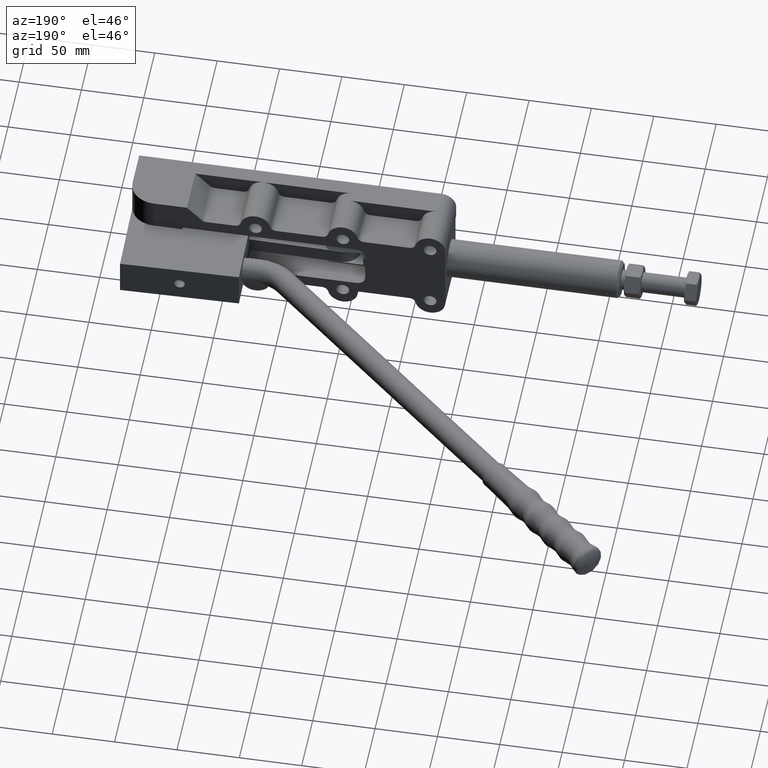
[diagram: clean part render]
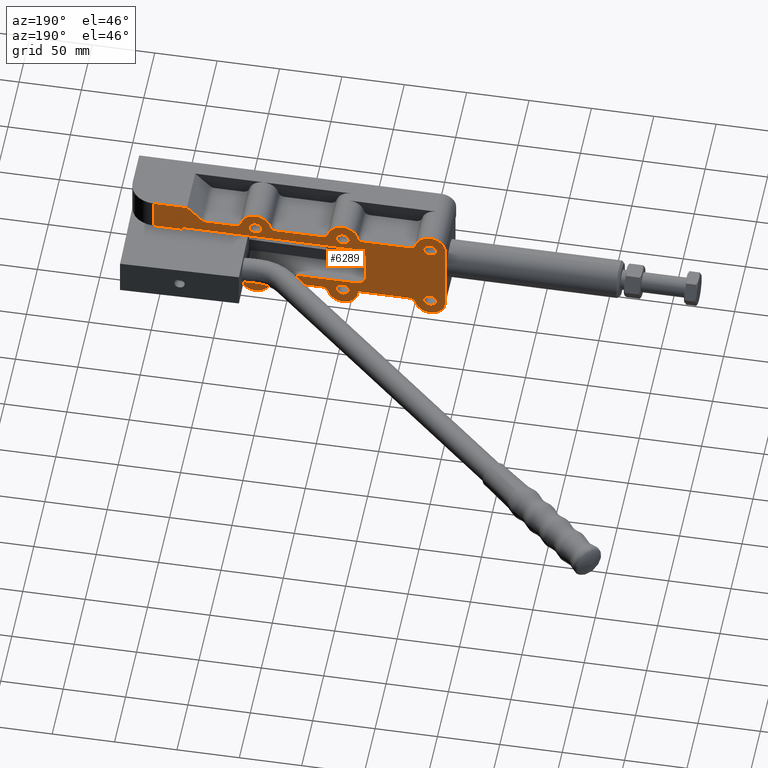
[diagram: same view with one face highlighted and labeled with its STEP entity id]
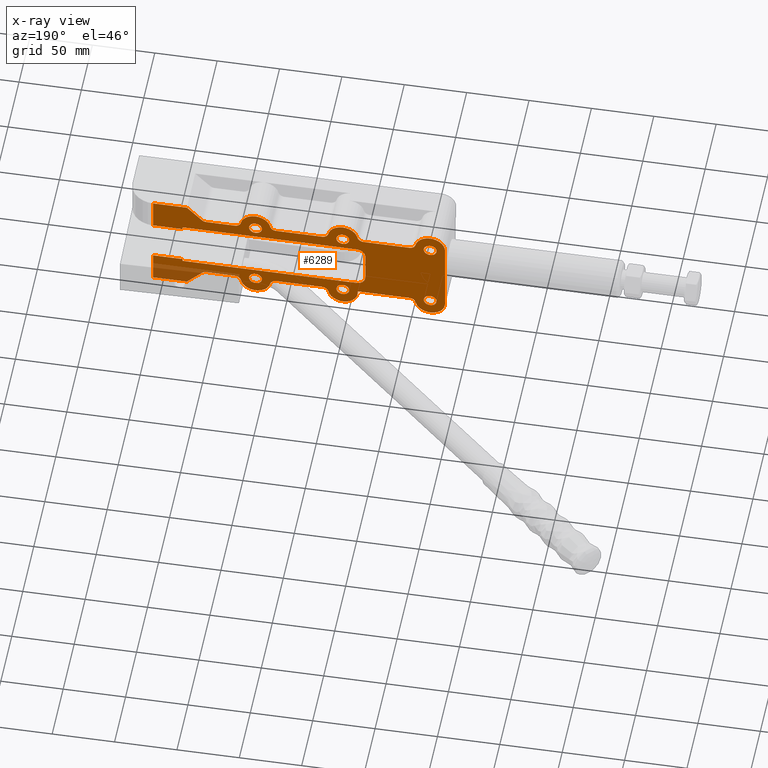
[diagram: x-ray of the same camera — body ghosted, the highlighted face saturated]
A machine part, auxiliary view. The second image highlights one B-rep face of the part: STEP entity #6289.
The next image is the same camera in x-ray: the body ghosted, the highlighted face saturated — about 7% of this face is hidden behind the body in this view.
In plain terms, the highlighted planar face has unit normal (0, 1, 0).
Its self-contained STEP definition (entity closure, byte-faithful):
#5 = ORIENTED_EDGE ( 'NONE', *, *, #2763, .T. ) ;
#11 = VECTOR ( 'NONE', #4022, 1000.000000000000000 ) ;
#14 = CARTESIAN_POINT ( 'NONE',  ( -127.0000000000000000, 51.00000000000000000, 42.00000000000002800 ) ) ;
#18 = VECTOR ( 'NONE', #5326, 1000.000000000000000 ) ;
#20 = CIRCLE ( 'NONE', #5557, 12.00000000000001400 ) ;
#22 = CIRCLE ( 'NONE', #1687, 5.000000000000000900 ) ;
#30 = DIRECTION ( 'NONE',  ( -1.000000000000000000, -0.0000000000000000000, -0.0000000000000000000 ) ) ;
#47 = DIRECTION ( 'NONE',  ( 0.0000000000000000000, -1.000000000000000000, -0.0000000000000000000 ) ) ;
#65 = CARTESIAN_POINT ( 'NONE',  ( 64.42893218813451000, 51.00000000000000000, 28.49999999999995700 ) ) ;
#97 = VERTEX_POINT ( 'NONE', #6593 ) ;
#111 = CIRCLE ( 'NONE', #5689, 12.00000000000000400 ) ;
#184 = CIRCLE ( 'NONE', #3871, 12.00000000000000000 ) ;
#277 = FACE_BOUND ( 'NONE', #3356, .T. ) ;
#306 = EDGE_CURVE ( 'NONE', #2485, #1443, #2377, .T. ) ;
#323 = CARTESIAN_POINT ( 'NONE',  ( -114.9999999999999900, 51.00000000000000000, 29.99999999999999600 ) ) ;
#331 = CIRCLE ( 'NONE', #6644, 12.00000000000000400 ) ;
#333 = CARTESIAN_POINT ( 'NONE',  ( -115.0000000000000000, 51.00000000000000000, -30.00000000000000400 ) ) ;
#373 = DIRECTION ( 'NONE',  ( -0.0000000000000000000, -1.000000000000000000, -0.0000000000000000000 ) ) ;
#380 = DIRECTION ( 'NONE',  ( 0.0000000000000000000, -1.000000000000000000, 0.0000000000000000000 ) ) ;
#396 = CARTESIAN_POINT ( 'NONE',  ( -114.9999999999999700, 51.00000000000000000, -28.50000000000000000 ) ) ;
#407 = VERTEX_POINT ( 'NONE', #5349 ) ;
#417 = ORIENTED_EDGE ( 'NONE', *, *, #2195, .T. ) ;
#428 = ORIENTED_EDGE ( 'NONE', *, *, #1977, .T. ) ;
#432 = EDGE_CURVE ( 'NONE', #5784, #4433, #5750, .T. ) ;
#436 = CARTESIAN_POINT ( 'NONE',  ( -56.00000000000000000, 51.00000000000000000, -12.00000000000001100 ) ) ;
#437 = VECTOR ( 'NONE', #4554, 999.9999999999998900 ) ;
#443 = CIRCLE ( 'NONE', #1107, 5.150000000000002100 ) ;
#444 = CARTESIAN_POINT ( 'NONE',  ( -56.90588089979066000, 51.00000000000000000, -28.50000000000000700 ) ) ;
#477 = AXIS2_PLACEMENT_3D ( 'NONE', #2222, #5921, #2748 ) ;
#502 = VERTEX_POINT ( 'NONE', #691 ) ;
#508 = DIRECTION ( 'NONE',  ( 0.0000000000000000000, -1.000000000000000000, 0.0000000000000000000 ) ) ;
#512 = LINE ( 'NONE', #1336, #3131 ) ;
#522 = CIRCLE ( 'NONE', #3240, 6.999999999999999100 ) ;
#548 = AXIS2_PLACEMENT_3D ( 'NONE', #5476, #3727, #3171 ) ;
#587 = ORIENTED_EDGE ( 'NONE', *, *, #2639, .T. ) ;
#597 = DIRECTION ( 'NONE',  ( 0.0000000000000000000, -1.000000000000000000, -0.0000000000000000000 ) ) ;
#599 = CIRCLE ( 'NONE', #5586, 4.999999999999997300 ) ;
#624 = DIRECTION ( 'NONE',  ( 0.0000000000000000000, -1.000000000000000000, -0.0000000000000000000 ) ) ;
#629 = CARTESIAN_POINT ( 'NONE',  ( 36.74292100678645300, 50.99999999999999300, 32.47058823529408000 ) ) ;
#638 = ORIENTED_EDGE ( 'NONE', *, *, #2761, .F. ) ;
#650 = VERTEX_POINT ( 'NONE', #4992 ) ;
#659 = ORIENTED_EDGE ( 'NONE', *, *, #1508, .T. ) ;
#668 = ORIENTED_EDGE ( 'NONE', *, *, #4842, .F. ) ;
#691 = CARTESIAN_POINT ( 'NONE',  ( -115.0000000000000000, 51.00000000000000000, 23.34999999999999400 ) ) ;
#693 = VERTEX_POINT ( 'NONE', #1349 ) ;
#696 = AXIS2_PLACEMENT_3D ( 'NONE', #1860, #5546, #2397 ) ;
#700 = DIRECTION ( 'NONE',  ( -1.000000000000000000, 0.0000000000000000000, 3.517030130417777600E-016 ) ) ;
#707 = CARTESIAN_POINT ( 'NONE',  ( 8.364195240385882400, 50.99999999999999300, 33.49999999999996400 ) ) ;
#709 = EDGE_CURVE ( 'NONE', #5808, #407, #5834, .T. ) ;
#729 = ORIENTED_EDGE ( 'NONE', *, *, #6568, .T. ) ;
#739 = AXIS2_PLACEMENT_3D ( 'NONE', #6037, #2872, #6564 ) ;
#778 = CARTESIAN_POINT ( 'NONE',  ( 106.9999999999999900, 51.00000000000000000, 42.00000000000000000 ) ) ;
#793 = CARTESIAN_POINT ( 'NONE',  ( 25.00000000000000700, 51.00000000000000000, 33.64999999999999900 ) ) ;
#794 = ORIENTED_EDGE ( 'NONE', *, *, #432, .T. ) ;
#814 = AXIS2_PLACEMENT_3D ( 'NONE', #4465, #508, #1991 ) ;
#820 = ORIENTED_EDGE ( 'NONE', *, *, #6361, .F. ) ;
#838 = ORIENTED_EDGE ( 'NONE', *, *, #1763, .T. ) ;
#855 = DIRECTION ( 'NONE',  ( 0.0000000000000000000, 0.0000000000000000000, 1.000000000000000000 ) ) ;
#871 = AXIS2_PLACEMENT_3D ( 'NONE', #396, #4060, #919 ) ;
#890 = CARTESIAN_POINT ( 'NONE',  ( -127.0000000000000000, 51.00000000000000000, -41.99999999999999300 ) ) ;
#893 = DIRECTION ( 'NONE',  ( 0.0000000000000000000, -1.000000000000000000, 0.0000000000000000000 ) ) ;
#907 = EDGE_CURVE ( 'NONE', #2379, #693, #5095, .T. ) ;
#910 = VERTEX_POINT ( 'NONE', #2617 ) ;
#919 = DIRECTION ( 'NONE',  ( 0.0000000000000000000, 0.0000000000000000000, 1.000000000000000000 ) ) ;
#931 = LINE ( 'NONE', #4941, #3731 ) ;
#943 = VECTOR ( 'NONE', #6491, 1000.000000000000000 ) ;
#955 = DIRECTION ( 'NONE',  ( 0.0000000000000000000, 0.0000000000000000000, 1.000000000000000000 ) ) ;
#956 = CARTESIAN_POINT ( 'NONE',  ( 8.364195240385882400, 51.00000000000000000, -28.50000000000000400 ) ) ;
#957 = VECTOR ( 'NONE', #3124, 1000.000000000000000 ) ;
#959 = EDGE_CURVE ( 'NONE', #5864, #2053, #3006, .T. ) ;
#968 = CARTESIAN_POINT ( 'NONE',  ( 8.364195240385882400, 50.99999999999999300, -33.50000000000000000 ) ) ;
#978 = CARTESIAN_POINT ( 'NONE',  ( 25.00000000000000700, 50.99999999999999300, 29.99999999999996100 ) ) ;
#980 = VERTEX_POINT ( 'NONE', #65 ) ;
#994 = CIRCLE ( 'NONE', #2621, 5.150000000000002100 ) ;
#1003 = EDGE_LOOP ( 'NONE', ( #2481, #5 ) ) ;
#1008 = LINE ( 'NONE', #4260, #3653 ) ;
#1014 = CIRCLE ( 'NONE', #4601, 5.149999999999998600 ) ;
#1019 = CARTESIAN_POINT ( 'NONE',  ( -114.9999999999999700, 51.00000000000000000, -23.35000000000000100 ) ) ;
#1107 = AXIS2_PLACEMENT_3D ( 'NONE', #2937, #6050, #2774 ) ;
#1120 = EDGE_LOOP ( 'NONE', ( #838, #5273 ) ) ;
#1129 = DIRECTION ( 'NONE',  ( -0.0000000000000000000, -1.000000000000000000, -0.0000000000000000000 ) ) ;
#1164 = CARTESIAN_POINT ( 'NONE',  ( -98.36419524038588200, 51.00000000000000000, -28.50000000000000400 ) ) ;
#1168 = ORIENTED_EDGE ( 'NONE', *, *, #1800, .F. ) ;
#1227 = DIRECTION ( 'NONE',  ( -1.040834085586084800E-015, 0.0000000000000000000, 1.000000000000000000 ) ) ;
#1323 = VECTOR ( 'NONE', #5101, 1000.000000000000000 ) ;
#1331 = FACE_OUTER_BOUND ( 'NONE', #3786, .T. ) ;
#1336 = CARTESIAN_POINT ( 'NONE',  ( -56.90588089979066000, 51.00000000000000000, -28.50000000000000700 ) ) ;
#1341 = ORIENTED_EDGE ( 'NONE', *, *, #2491, .T. ) ;
#1349 = CARTESIAN_POINT ( 'NONE',  ( 106.9999999999999900, 51.00000000000000000, 17.00000000000000000 ) ) ;
#1357 = CARTESIAN_POINT ( 'NONE',  ( 83.49999999999998600, 51.00000000000000000, -19.00000000000003200 ) ) ;
#1360 = CARTESIAN_POINT ( 'NONE',  ( 83.49999999999998600, 51.00000000000000000, 17.00000000000000000 ) ) ;
#1362 = AXIS2_PLACEMENT_3D ( 'NONE', #2739, #6425, #3261 ) ;
#1370 = VERTEX_POINT ( 'NONE', #4137 ) ;
#1371 = EDGE_CURVE ( 'NONE', #980, #2479, #3824, .T. ) ;
#1383 = CARTESIAN_POINT ( 'NONE',  ( 66.49999999999997200, 51.00000000000000000, -28.50000000000000400 ) ) ;
#1390 = CARTESIAN_POINT ( 'NONE',  ( -56.90588089979065200, 51.00000000000000000, 28.49999999999998200 ) ) ;
#1395 = LINE ( 'NONE', #6141, #11 ) ;
#1405 = DIRECTION ( 'NONE',  ( 0.0000000000000000000, -0.0000000000000000000, 1.000000000000000000 ) ) ;
#1443 = VERTEX_POINT ( 'NONE', #2142 ) ;
#1490 = FACE_BOUND ( 'NONE', #2251, .T. ) ;
#1501 = DIRECTION ( 'NONE',  ( 0.0000000000000000000, 0.0000000000000000000, 1.000000000000000000 ) ) ;
#1508 = EDGE_CURVE ( 'NONE', #1443, #5543, #3744, .T. ) ;
#1509 = ORIENTED_EDGE ( 'NONE', *, *, #907, .F. ) ;
#1523 = CARTESIAN_POINT ( 'NONE',  ( -45.00000000000002100, 51.00000000000000000, -23.35000000000001900 ) ) ;
#1538 = CARTESIAN_POINT ( 'NONE',  ( 77.43408512738362500, 51.00000000000000000, 17.00000000000000000 ) ) ;
#1540 = ORIENTED_EDGE ( 'NONE', *, *, #3020, .T. ) ;
#1570 = LINE ( 'NONE', #6246, #4221 ) ;
#1637 = ORIENTED_EDGE ( 'NONE', *, *, #4802, .F. ) ;
#1674 = ORIENTED_EDGE ( 'NONE', *, *, #4606, .F. ) ;
#1687 = AXIS2_PLACEMENT_3D ( 'NONE', #3773, #1968, #5260 ) ;
#1732 = VERTEX_POINT ( 'NONE', #4589 ) ;
#1744 = EDGE_LOOP ( 'NONE', ( #1341, #2875 ) ) ;
#1763 = EDGE_CURVE ( 'NONE', #3102, #2629, #1858, .T. ) ;
#1774 = DIRECTION ( 'NONE',  ( -0.0000000000000000000, -0.0000000000000000000, -1.000000000000000000 ) ) ;
#1792 = VERTEX_POINT ( 'NONE', #2619 ) ;
#1800 = EDGE_CURVE ( 'NONE', #2552, #3760, #5238, .T. ) ;
#1827 = AXIS2_PLACEMENT_3D ( 'NONE', #5984, #1833, #2537 ) ;
#1828 = DIRECTION ( 'NONE',  ( 0.0000000000000000000, -1.000000000000000000, 0.0000000000000000000 ) ) ;
#1832 = LINE ( 'NONE', #5470, #437 ) ;
#1833 = DIRECTION ( 'NONE',  ( 0.0000000000000000000, -1.000000000000000000, 0.0000000000000000000 ) ) ;
#1852 = ORIENTED_EDGE ( 'NONE', *, *, #6266, .F. ) ;
#1858 = CIRCLE ( 'NONE', #814, 5.150000000000002100 ) ;
#1860 = CARTESIAN_POINT ( 'NONE',  ( -28.36419524038586100, 50.99999999999999300, 33.49999999999997200 ) ) ;
#1875 = AXIS2_PLACEMENT_3D ( 'NONE', #333, #3519, #6683 ) ;
#1893 = VERTEX_POINT ( 'NONE', #6202 ) ;
#1894 = VERTEX_POINT ( 'NONE', #5140 ) ;
#1900 = ORIENTED_EDGE ( 'NONE', *, *, #6726, .T. ) ;
#1908 = DIRECTION ( 'NONE',  ( -0.0000000000000000000, -0.0000000000000000000, -1.000000000000000000 ) ) ;
#1940 = PLANE ( 'NONE',  #6731 ) ;
#1946 = DIRECTION ( 'NONE',  ( 0.0000000000000000000, -1.000000000000000000, -0.0000000000000000000 ) ) ;
#1959 = CARTESIAN_POINT ( 'NONE',  ( 13.09411910020935100, 51.00000000000000000, -28.50000000000000400 ) ) ;
#1965 = CARTESIAN_POINT ( 'NONE',  ( -115.0000000000000000, 51.00000000000000000, 28.49999999999999300 ) ) ;
#1968 = DIRECTION ( 'NONE',  ( 0.0000000000000000000, -1.000000000000000000, -0.0000000000000000000 ) ) ;
#1977 = EDGE_CURVE ( 'NONE', #2408, #2752, #6546, .T. ) ;
#1978 = VERTEX_POINT ( 'NONE', #2599 ) ;
#1989 = VERTEX_POINT ( 'NONE', #3078 ) ;
#1991 = DIRECTION ( 'NONE',  ( 0.0000000000000000000, 0.0000000000000000000, 1.000000000000000000 ) ) ;
#2007 = CIRCLE ( 'NONE', #6286, 5.149999999999998600 ) ;
#2015 = CARTESIAN_POINT ( 'NONE',  ( -55.99999999999999300, 51.00000000000000000, 18.99999999999998600 ) ) ;
#2031 = DIRECTION ( 'NONE',  ( 0.0000000000000000000, -1.000000000000000000, 0.0000000000000000000 ) ) ;
#2053 = VERTEX_POINT ( 'NONE', #3307 ) ;
#2125 = CARTESIAN_POINT ( 'NONE',  ( 77.43408512738362500, 51.00000000000000000, -17.00000000000000000 ) ) ;
#2137 = VERTEX_POINT ( 'NONE', #1164 ) ;
#2142 = CARTESIAN_POINT ( 'NONE',  ( 106.9999999999999900, 51.00000000000000000, -42.00000000000000000 ) ) ;
#2146 = VECTOR ( 'NONE', #3546, 1000.000000000000100 ) ;
#2147 = ORIENTED_EDGE ( 'NONE', *, *, #3658, .T. ) ;
#2149 = DIRECTION ( 'NONE',  ( 0.0000000000000000000, -1.000000000000000000, 0.0000000000000000000 ) ) ;
#2160 = LINE ( 'NONE', #1383, #1323 ) ;
#2165 = CARTESIAN_POINT ( 'NONE',  ( -56.00000000000000000, 51.00000000000000000, -19.00000000000000700 ) ) ;
#2168 = DIRECTION ( 'NONE',  ( 0.0000000000000000000, -1.000000000000000000, -0.0000000000000000000 ) ) ;
#2195 = EDGE_CURVE ( 'NONE', #2752, #693, #1008, .T. ) ;
#2200 = DIRECTION ( 'NONE',  ( -1.000000000000000000, 0.0000000000000000000, 7.511537757511100400E-017 ) ) ;
#2222 = CARTESIAN_POINT ( 'NONE',  ( -98.36419524038588200, 50.99999999999999300, -33.50000000000000000 ) ) ;
#2251 = EDGE_LOOP ( 'NONE', ( #3021, #4719 ) ) ;
#2258 = ORIENTED_EDGE ( 'NONE', *, *, #4039, .F. ) ;
#2272 = CARTESIAN_POINT ( 'NONE',  ( -103.2570789932135700, 51.00000000000000000, -32.47058823529411600 ) ) ;
#2293 = EDGE_CURVE ( 'NONE', #4521, #1792, #4553, .T. ) ;
#2299 = VERTEX_POINT ( 'NONE', #444 ) ;
#2320 = VERTEX_POINT ( 'NONE', #3399 ) ;
#2371 = DIRECTION ( 'NONE',  ( 0.0000000000000000000, -1.000000000000000000, -0.0000000000000000000 ) ) ;
#2377 = LINE ( 'NONE', #4160, #957 ) ;
#2379 = VERTEX_POINT ( 'NONE', #1360 ) ;
#2384 = VERTEX_POINT ( 'NONE', #4159 ) ;
#2397 = DIRECTION ( 'NONE',  ( 0.0000000000000000000, 0.0000000000000000000, 1.000000000000000000 ) ) ;
#2408 = VERTEX_POINT ( 'NONE', #4440 ) ;
#2415 = CIRCLE ( 'NONE', #696, 4.999999999999997300 ) ;
#2445 = VECTOR ( 'NONE', #4716, 1000.000000000000000 ) ;
#2462 = EDGE_CURVE ( 'NONE', #5864, #6428, #4636, .T. ) ;
#2466 = CARTESIAN_POINT ( 'NONE',  ( -114.9999999999999900, 51.00000000000000000, 42.00000000000000700 ) ) ;
#2479 = VERTEX_POINT ( 'NONE', #3428 ) ;
#2481 = ORIENTED_EDGE ( 'NONE', *, *, #3035, .T. ) ;
#2485 = VERTEX_POINT ( 'NONE', #4833 ) ;
#2487 = DIRECTION ( 'NONE',  ( 1.000000000000000000, -0.0000000000000000000, -0.0000000000000000000 ) ) ;
#2491 = EDGE_CURVE ( 'NONE', #1792, #4521, #443, .T. ) ;
#2537 = DIRECTION ( 'NONE',  ( 0.0000000000000000000, 0.0000000000000000000, -1.000000000000000000 ) ) ;
#2548 = DIRECTION ( 'NONE',  ( 0.0000000000000000000, 0.0000000000000000000, -1.000000000000000000 ) ) ;
#2552 = VERTEX_POINT ( 'NONE', #3862 ) ;
#2554 = EDGE_CURVE ( 'NONE', #1978, #5693, #2738, .T. ) ;
#2563 = DIRECTION ( 'NONE',  ( 0.0000000000000000000, 0.0000000000000000000, 1.000000000000000000 ) ) ;
#2571 = DIRECTION ( 'NONE',  ( 0.0000000000000000000, -1.000000000000000000, -0.0000000000000000000 ) ) ;
#2573 = VECTOR ( 'NONE', #2487, 1000.000000000000000 ) ;
#2599 = CARTESIAN_POINT ( 'NONE',  ( 25.00000000000000700, 51.00000000000000000, 23.34999999999999100 ) ) ;
#2617 = CARTESIAN_POINT ( 'NONE',  ( 67.96446609406724800, 51.00000000000000000, -29.96446609406726200 ) ) ;
#2619 = CARTESIAN_POINT ( 'NONE',  ( -45.00000000000002100, 51.00000000000000000, -33.65000000000002700 ) ) ;
#2621 = AXIS2_PLACEMENT_3D ( 'NONE', #2951, #380, #3264 ) ;
#2629 = VERTEX_POINT ( 'NONE', #5391 ) ;
#2635 = ORIENTED_EDGE ( 'NONE', *, *, #2717, .T. ) ;
#2639 = EDGE_CURVE ( 'NONE', #3358, #2053, #22, .T. ) ;
#2648 = CIRCLE ( 'NONE', #477, 5.000000000000000900 ) ;
#2685 = CARTESIAN_POINT ( 'NONE',  ( -115.0000000000000000, 51.00000000000000000, 28.49999999999999300 ) ) ;
#2717 = EDGE_CURVE ( 'NONE', #2320, #2803, #599, .T. ) ;
#2731 = LINE ( 'NONE', #1959, #2573 ) ;
#2737 = FACE_BOUND ( 'NONE', #1003, .T. ) ;
#2738 = CIRCLE ( 'NONE', #1827, 5.150000000000002100 ) ;
#2739 = CARTESIAN_POINT ( 'NONE',  ( -45.00000000000000000, 51.00000000000000000, 28.49999999999999300 ) ) ;
#2748 = DIRECTION ( 'NONE',  ( 0.0000000000000000000, 0.0000000000000000000, 1.000000000000000000 ) ) ;
#2749 = CIRCLE ( 'NONE', #4929, 5.150000000000002100 ) ;
#2752 = VERTEX_POINT ( 'NONE', #778 ) ;
#2761 = EDGE_CURVE ( 'NONE', #910, #5543, #1832, .T. ) ;
#2763 = EDGE_CURVE ( 'NONE', #3265, #502, #2007, .T. ) ;
#2774 = DIRECTION ( 'NONE',  ( 0.0000000000000000000, 0.0000000000000000000, 1.000000000000000000 ) ) ;
#2803 = VERTEX_POINT ( 'NONE', #6483 ) ;
#2824 = EDGE_CURVE ( 'NONE', #2629, #3102, #994, .T. ) ;
#2872 = DIRECTION ( 'NONE',  ( 0.0000000000000000000, -1.000000000000000000, -0.0000000000000000000 ) ) ;
#2875 = ORIENTED_EDGE ( 'NONE', *, *, #2293, .T. ) ;
#2908 = FACE_BOUND ( 'NONE', #1120, .T. ) ;
#2920 = VERTEX_POINT ( 'NONE', #3594 ) ;
#2937 = CARTESIAN_POINT ( 'NONE',  ( -45.00000000000002100, 51.00000000000000000, -28.50000000000002100 ) ) ;
#2951 = CARTESIAN_POINT ( 'NONE',  ( 24.99999999999995400, 51.00000000000000000, -28.50000000000003600 ) ) ;
#2980 = CARTESIAN_POINT ( 'NONE',  ( 25.00000000000000700, 50.99999999999999300, 29.99999999999996100 ) ) ;
#2998 = VERTEX_POINT ( 'NONE', #4741 ) ;
#3005 = CARTESIAN_POINT ( 'NONE',  ( -44.99999999999999300, 51.00000000000000000, 29.99999999999997200 ) ) ;
#3006 = CIRCLE ( 'NONE', #4640, 12.00000000000000000 ) ;
#3010 = CARTESIAN_POINT ( 'NONE',  ( -56.00000000000000000, 51.00000000000000000, 11.99999999999998900 ) ) ;
#3020 = EDGE_CURVE ( 'NONE', #2920, #5861, #3815, .T. ) ;
#3021 = ORIENTED_EDGE ( 'NONE', *, *, #3507, .T. ) ;
#3035 = EDGE_CURVE ( 'NONE', #502, #3265, #1014, .T. ) ;
#3075 = EDGE_CURVE ( 'NONE', #980, #2384, #6297, .T. ) ;
#3078 = CARTESIAN_POINT ( 'NONE',  ( 64.42893218813449600, 51.00000000000000000, -28.50000000000000400 ) ) ;
#3102 = VERTEX_POINT ( 'NONE', #3789 ) ;
#3124 = DIRECTION ( 'NONE',  ( 0.0000000000000000000, 0.0000000000000000000, -1.000000000000000000 ) ) ;
#3131 = VECTOR ( 'NONE', #3945, 1000.000000000000000 ) ;
#3167 = EDGE_CURVE ( 'NONE', #1370, #1732, #3666, .T. ) ;
#3171 = DIRECTION ( 'NONE',  ( 0.0000000000000000000, 0.0000000000000000000, 1.000000000000000000 ) ) ;
#3179 = CARTESIAN_POINT ( 'NONE',  ( -28.36419524038586100, 50.99999999999999300, -33.50000000000000000 ) ) ;
#3191 = DIRECTION ( 'NONE',  ( 0.0000000000000000000, 0.0000000000000000000, 1.000000000000000000 ) ) ;
#3212 = DIRECTION ( 'NONE',  ( 0.0000000000000000000, 0.0000000000000000000, -1.000000000000000000 ) ) ;
#3224 = VECTOR ( 'NONE', #30, 1000.000000000000000 ) ;
#3240 = AXIS2_PLACEMENT_3D ( 'NONE', #3010, #6704, #3540 ) ;
#3242 = CIRCLE ( 'NONE', #6469, 4.999999999999997300 ) ;
#3257 = CARTESIAN_POINT ( 'NONE',  ( -127.0000000000000000, 51.00000000000000000, -41.99999999999999300 ) ) ;
#3261 = DIRECTION ( 'NONE',  ( 0.0000000000000000000, 0.0000000000000000000, -1.000000000000000000 ) ) ;
#3264 = DIRECTION ( 'NONE',  ( 0.0000000000000000000, 0.0000000000000000000, 1.000000000000000000 ) ) ;
#3265 = VERTEX_POINT ( 'NONE', #3911 ) ;
#3307 = CARTESIAN_POINT ( 'NONE',  ( 36.74292100678645300, 50.99999999999999300, -32.47058823529411600 ) ) ;
#3334 = VECTOR ( 'NONE', #700, 1000.000000000000000 ) ;
#3356 = EDGE_LOOP ( 'NONE', ( #6089, #4726 ) ) ;
#3358 = VERTEX_POINT ( 'NONE', #5577 ) ;
#3370 = ORIENTED_EDGE ( 'NONE', *, *, #6160, .T. ) ;
#3399 = CARTESIAN_POINT ( 'NONE',  ( -103.2570789932135300, 51.00000000000000000, 32.47058823529410900 ) ) ;
#3416 = CIRCLE ( 'NONE', #5407, 5.149999999999998600 ) ;
#3428 = CARTESIAN_POINT ( 'NONE',  ( 41.63580475961413200, 51.00000000000000000, 28.49999999999996800 ) ) ;
#3496 = DIRECTION ( 'NONE',  ( 8.673617379884035500E-016, 0.0000000000000000000, 1.000000000000000000 ) ) ;
#3504 = CARTESIAN_POINT ( 'NONE',  ( -44.99999999999999300, 51.00000000000000000, -29.99999999999999300 ) ) ;
#3507 = EDGE_CURVE ( 'NONE', #5226, #5042, #3416, .T. ) ;
#3519 = DIRECTION ( 'NONE',  ( -0.0000000000000000000, -1.000000000000000000, -0.0000000000000000000 ) ) ;
#3528 = DIRECTION ( 'NONE',  ( 0.0000000000000000000, 0.0000000000000000000, -1.000000000000000000 ) ) ;
#3532 = EDGE_CURVE ( 'NONE', #4611, #97, #3242, .T. ) ;
#3540 = DIRECTION ( 'NONE',  ( 0.0000000000000000000, 0.0000000000000000000, 1.000000000000000000 ) ) ;
#3541 = AXIS2_PLACEMENT_3D ( 'NONE', #3179, #47, #3718 ) ;
#3542 = AXIS2_PLACEMENT_3D ( 'NONE', #5329, #2168, #5856 ) ;
#3546 = DIRECTION ( 'NONE',  ( -0.7071067811865489100, 0.0000000000000000000, -0.7071067811865461300 ) ) ;
#3578 = DIRECTION ( 'NONE',  ( 1.000000000000000000, 0.0000000000000000000, -7.461176240760461400E-017 ) ) ;
#3594 = CARTESIAN_POINT ( 'NONE',  ( -28.36419524038586500, 51.00000000000000000, -28.50000000000000400 ) ) ;
#3646 = ORIENTED_EDGE ( 'NONE', *, *, #306, .T. ) ;
#3653 = VECTOR ( 'NONE', #2548, 1000.000000000000000 ) ;
#3658 = EDGE_CURVE ( 'NONE', #4433, #5784, #2749, .T. ) ;
#3666 = CIRCLE ( 'NONE', #4109, 4.999999999999997300 ) ;
#3700 = ORIENTED_EDGE ( 'NONE', *, *, #3823, .F. ) ;
#3718 = DIRECTION ( 'NONE',  ( 0.0000000000000000000, 0.0000000000000000000, 1.000000000000000000 ) ) ;
#3727 = DIRECTION ( 'NONE',  ( 0.0000000000000000000, -1.000000000000000000, 0.0000000000000000000 ) ) ;
#3731 = VECTOR ( 'NONE', #1774, 1000.000000000000000 ) ;
#3744 = LINE ( 'NONE', #3257, #943 ) ;
#3745 = CARTESIAN_POINT ( 'NONE',  ( 25.00000000000000700, 50.99999999999999300, -30.00000000000000400 ) ) ;
#3760 = VERTEX_POINT ( 'NONE', #2272 ) ;
#3761 = CARTESIAN_POINT ( 'NONE',  ( 64.42893218813451000, 50.99999999999999300, 33.49999999999995000 ) ) ;
#3771 = ORIENTED_EDGE ( 'NONE', *, *, #959, .F. ) ;
#3773 = CARTESIAN_POINT ( 'NONE',  ( 41.63580475961413200, 50.99999999999999300, -33.50000000000000000 ) ) ;
#3786 = EDGE_LOOP ( 'NONE', ( #417, #1509, #3700, #820, #2258, #5193, #5434, #1674, #5940, #6006, #3646, #659, #638, #3370, #1637, #587, #3771, #3809, #668, #1540, #1852, #5043, #729, #1168, #6183, #5022, #4949, #2635, #6198, #6738, #6777, #4953, #1900, #4817, #6338, #5114, #4129, #4778, #5340, #3866, #4698, #428 ) ) ;
#3789 = CARTESIAN_POINT ( 'NONE',  ( 24.99999999999995400, 51.00000000000000000, -33.65000000000004100 ) ) ;
#3809 = ORIENTED_EDGE ( 'NONE', *, *, #2462, .T. ) ;
#3815 = CIRCLE ( 'NONE', #3541, 5.000000000000000900 ) ;
#3823 = EDGE_CURVE ( 'NONE', #1894, #2379, #931, .T. ) ;
#3824 = LINE ( 'NONE', #5290, #3334 ) ;
#3862 = CARTESIAN_POINT ( 'NONE',  ( -127.0000000000000000, 51.00000000000000000, -29.99999999999998200 ) ) ;
#3866 = ORIENTED_EDGE ( 'NONE', *, *, #3075, .T. ) ;
#3871 = AXIS2_PLACEMENT_3D ( 'NONE', #2980, #6658, #3496 ) ;
#3875 = VECTOR ( 'NONE', #1908, 1000.000000000000000 ) ;
#3911 = CARTESIAN_POINT ( 'NONE',  ( -115.0000000000000000, 51.00000000000000000, 33.64999999999999100 ) ) ;
#3936 = VERTEX_POINT ( 'NONE', #3966 ) ;
#3945 = DIRECTION ( 'NONE',  ( 1.000000000000000000, -0.0000000000000000000, -7.511537757511096700E-017 ) ) ;
#3966 = CARTESIAN_POINT ( 'NONE',  ( 83.49999999999998600, 51.00000000000000000, -17.00000000000000000 ) ) ;
#3974 = CIRCLE ( 'NONE', #6391, 12.00000000000000400 ) ;
#3999 = DIRECTION ( 'NONE',  ( -0.0000000000000000000, -1.000000000000000000, -0.0000000000000000000 ) ) ;
#4022 = DIRECTION ( 'NONE',  ( 0.0000000000000000000, 0.0000000000000000000, 1.000000000000000000 ) ) ;
#4031 = DIRECTION ( 'NONE',  ( 0.0000000000000000000, 0.0000000000000000000, 1.000000000000000000 ) ) ;
#4039 = EDGE_CURVE ( 'NONE', #1893, #5888, #522, .T. ) ;
#4047 = CIRCLE ( 'NONE', #739, 5.000000000000000900 ) ;
#4060 = DIRECTION ( 'NONE',  ( 0.0000000000000000000, -1.000000000000000000, 0.0000000000000000000 ) ) ;
#4094 = DIRECTION ( 'NONE',  ( 0.0000000000000000000, 1.000000000000000000, 0.0000000000000000000 ) ) ;
#4100 = EDGE_CURVE ( 'NONE', #2552, #407, #1570, .T. ) ;
#4109 = AXIS2_PLACEMENT_3D ( 'NONE', #707, #4392, #1227 ) ;
#4129 = ORIENTED_EDGE ( 'NONE', *, *, #6808, .F. ) ;
#4137 = CARTESIAN_POINT ( 'NONE',  ( 8.364195240385882400, 51.00000000000000000, 28.49999999999997200 ) ) ;
#4159 = CARTESIAN_POINT ( 'NONE',  ( 67.96446609406726200, 51.00000000000000000, 29.96446609406721600 ) ) ;
#4160 = CARTESIAN_POINT ( 'NONE',  ( 106.9999999999999900, 51.00000000000000000, -42.00000000000000000 ) ) ;
#4219 = EDGE_CURVE ( 'NONE', #2485, #3936, #4634, .T. ) ;
#4221 = VECTOR ( 'NONE', #2563, 1000.000000000000000 ) ;
#4260 = CARTESIAN_POINT ( 'NONE',  ( 106.9999999999999900, 51.00000000000000000, 15.99999999999996600 ) ) ;
#4261 = EDGE_CURVE ( 'NONE', #4323, #2479, #5718, .T. ) ;
#4265 = DIRECTION ( 'NONE',  ( 8.673617379884035500E-016, 0.0000000000000000000, 1.000000000000000000 ) ) ;
#4285 = CARTESIAN_POINT ( 'NONE',  ( -114.9999999999999900, 51.00000000000000000, 29.99999999999999600 ) ) ;
#4290 = DIRECTION ( 'NONE',  ( 0.0000000000000000000, 0.0000000000000000000, 1.000000000000000000 ) ) ;
#4323 = VERTEX_POINT ( 'NONE', #629 ) ;
#4342 = CARTESIAN_POINT ( 'NONE',  ( 25.00000000000000700, 50.99999999999999300, 41.99999999999996400 ) ) ;
#4355 = EDGE_LOOP ( 'NONE', ( #794, #2147 ) ) ;
#4361 = VECTOR ( 'NONE', #6154, 1000.000000000000000 ) ;
#4367 = CIRCLE ( 'NONE', #6212, 5.150000000000002100 ) ;
#4382 = LINE ( 'NONE', #2165, #18 ) ;
#4392 = DIRECTION ( 'NONE',  ( 0.0000000000000000000, -1.000000000000000000, -0.0000000000000000000 ) ) ;
#4433 = VERTEX_POINT ( 'NONE', #4624 ) ;
#4440 = CARTESIAN_POINT ( 'NONE',  ( 80.00000000000007100, 51.00000000000000000, 42.00000000000000700 ) ) ;
#4465 = CARTESIAN_POINT ( 'NONE',  ( 24.99999999999995400, 51.00000000000000000, -28.50000000000003600 ) ) ;
#4482 = EDGE_CURVE ( 'NONE', #4693, #1732, #5064, .T. ) ;
#4521 = VERTEX_POINT ( 'NONE', #1523 ) ;
#4526 = LINE ( 'NONE', #1390, #4361 ) ;
#4553 = CIRCLE ( 'NONE', #548, 5.150000000000002100 ) ;
#4554 = DIRECTION ( 'NONE',  ( 0.7071067811865489100, -0.0000000000000000000, -0.7071067811865462400 ) ) ;
#4569 = DIRECTION ( 'NONE',  ( -0.0000000000000000000, 1.000000000000000000, 0.0000000000000000000 ) ) ;
#4589 = CARTESIAN_POINT ( 'NONE',  ( 13.25707899321356500, 50.99999999999999300, 32.47058823529408800 ) ) ;
#4593 = CARTESIAN_POINT ( 'NONE',  ( -33.25707899321354700, 51.00000000000000000, -32.47058823529411600 ) ) ;
#4601 = AXIS2_PLACEMENT_3D ( 'NONE', #2685, #6378, #3212 ) ;
#4606 = EDGE_CURVE ( 'NONE', #6277, #6692, #4382, .T. ) ;
#4611 = VERTEX_POINT ( 'NONE', #6383 ) ;
#4624 = CARTESIAN_POINT ( 'NONE',  ( -45.00000000000000000, 51.00000000000000000, 33.64999999999999900 ) ) ;
#4625 = DIRECTION ( 'NONE',  ( 1.000000000000000000, 0.0000000000000000000, -1.092739197465705300E-016 ) ) ;
#4634 = LINE ( 'NONE', #2125, #3224 ) ;
#4635 = FACE_BOUND ( 'NONE', #1744, .T. ) ;
#4636 = CIRCLE ( 'NONE', #5849, 5.000000000000000900 ) ;
#4640 = AXIS2_PLACEMENT_3D ( 'NONE', #3745, #597, #4265 ) ;
#4674 = DIRECTION ( 'NONE',  ( 0.0000000000000000000, -1.000000000000000000, -0.0000000000000000000 ) ) ;
#4693 = VERTEX_POINT ( 'NONE', #4342 ) ;
#4698 = ORIENTED_EDGE ( 'NONE', *, *, #5430, .F. ) ;
#4709 = CARTESIAN_POINT ( 'NONE',  ( 80.00000000000001400, 51.00000000000000000, -41.99999999999999300 ) ) ;
#4716 = DIRECTION ( 'NONE',  ( 1.000000000000000000, 0.0000000000000000000, 0.0000000000000000000 ) ) ;
#4719 = ORIENTED_EDGE ( 'NONE', *, *, #5832, .T. ) ;
#4726 = ORIENTED_EDGE ( 'NONE', *, *, #5249, .T. ) ;
#4741 = CARTESIAN_POINT ( 'NONE',  ( -44.99999999999999300, 51.00000000000000000, 41.99999999999997200 ) ) ;
#4756 = CARTESIAN_POINT ( 'NONE',  ( -33.25707899321354700, 51.00000000000000000, 32.47058823529409500 ) ) ;
#4778 = ORIENTED_EDGE ( 'NONE', *, *, #4261, .T. ) ;
#4802 = EDGE_CURVE ( 'NONE', #3358, #1989, #2160, .T. ) ;
#4817 = ORIENTED_EDGE ( 'NONE', *, *, #6567, .F. ) ;
#4831 = DIRECTION ( 'NONE',  ( 0.0000000000000000000, 0.0000000000000000000, 1.000000000000000000 ) ) ;
#4833 = CARTESIAN_POINT ( 'NONE',  ( 106.9999999999999900, 51.00000000000000000, -17.00000000000000000 ) ) ;
#4842 = EDGE_CURVE ( 'NONE', #2920, #6428, #2731, .T. ) ;
#4929 = AXIS2_PLACEMENT_3D ( 'NONE', #5312, #2149, #5842 ) ;
#4931 = EDGE_CURVE ( 'NONE', #6692, #6182, #5958, .T. ) ;
#4936 = DIRECTION ( 'NONE',  ( 0.0000000000000000000, 0.0000000000000000000, -1.000000000000000000 ) ) ;
#4941 = CARTESIAN_POINT ( 'NONE',  ( 83.49999999999998600, 51.00000000000000000, 15.99999999999997300 ) ) ;
#4949 = ORIENTED_EDGE ( 'NONE', *, *, #6528, .F. ) ;
#4953 = ORIENTED_EDGE ( 'NONE', *, *, #5789, .F. ) ;
#4959 = LINE ( 'NONE', #6709, #2146 ) ;
#4992 = CARTESIAN_POINT ( 'NONE',  ( -28.36419524038586100, 51.00000000000000000, 28.49999999999997200 ) ) ;
#5003 = CARTESIAN_POINT ( 'NONE',  ( 25.00000000000000700, 51.00000000000000000, 28.49999999999999300 ) ) ;
#5022 = ORIENTED_EDGE ( 'NONE', *, *, #709, .F. ) ;
#5042 = VERTEX_POINT ( 'NONE', #1019 ) ;
#5043 = ORIENTED_EDGE ( 'NONE', *, *, #6739, .F. ) ;
#5064 = CIRCLE ( 'NONE', #6031, 12.00000000000000000 ) ;
#5066 = LINE ( 'NONE', #6735, #6447 ) ;
#5095 = LINE ( 'NONE', #1538, #2445 ) ;
#5101 = DIRECTION ( 'NONE',  ( 1.000000000000000000, -0.0000000000000000000, -0.0000000000000000000 ) ) ;
#5106 = CARTESIAN_POINT ( 'NONE',  ( -44.99999999999999300, 51.00000000000000000, 29.99999999999997200 ) ) ;
#5114 = ORIENTED_EDGE ( 'NONE', *, *, #4482, .F. ) ;
#5138 = VECTOR ( 'NONE', #2200, 1000.000000000000000 ) ;
#5140 = CARTESIAN_POINT ( 'NONE',  ( 83.49999999999998600, 51.00000000000000000, 18.99999999999997500 ) ) ;
#5152 = VECTOR ( 'NONE', #4625, 1000.000000000000000 ) ;
#5179 = CARTESIAN_POINT ( 'NONE',  ( -114.9999999999999700, 51.00000000000000000, -28.50000000000000000 ) ) ;
#5193 = ORIENTED_EDGE ( 'NONE', *, *, #6812, .F. ) ;
#5226 = VERTEX_POINT ( 'NONE', #6025 ) ;
#5238 = CIRCLE ( 'NONE', #1875, 11.99999999999999600 ) ;
#5249 = EDGE_CURVE ( 'NONE', #5693, #1978, #4367, .T. ) ;
#5260 = DIRECTION ( 'NONE',  ( 0.0000000000000000000, 0.0000000000000000000, 1.000000000000000000 ) ) ;
#5273 = ORIENTED_EDGE ( 'NONE', *, *, #2824, .T. ) ;
#5290 = CARTESIAN_POINT ( 'NONE',  ( 66.49999999999998600, 51.00000000000000000, 28.49999999999995700 ) ) ;
#5312 = CARTESIAN_POINT ( 'NONE',  ( -45.00000000000000000, 51.00000000000000000, 28.49999999999999300 ) ) ;
#5326 = DIRECTION ( 'NONE',  ( -1.000000000000000000, -0.0000000000000000000, 1.740941122844107800E-016 ) ) ;
#5329 = CARTESIAN_POINT ( 'NONE',  ( 41.63580475961413200, 50.99999999999999300, 33.49999999999995700 ) ) ;
#5339 = EDGE_CURVE ( 'NONE', #3936, #6277, #6675, .T. ) ;
#5340 = ORIENTED_EDGE ( 'NONE', *, *, #1371, .F. ) ;
#5349 = CARTESIAN_POINT ( 'NONE',  ( -127.0000000000000000, 51.00000000000000000, 29.99999999999997200 ) ) ;
#5391 = CARTESIAN_POINT ( 'NONE',  ( 24.99999999999995400, 51.00000000000000000, -23.35000000000003300 ) ) ;
#5407 = AXIS2_PLACEMENT_3D ( 'NONE', #5179, #2031, #5708 ) ;
#5430 = EDGE_CURVE ( 'NONE', #2408, #2384, #4959, .T. ) ;
#5434 = ORIENTED_EDGE ( 'NONE', *, *, #4931, .F. ) ;
#5470 = CARTESIAN_POINT ( 'NONE',  ( 80.00000000000001400, 51.00000000000000000, -41.99999999999999300 ) ) ;
#5476 = CARTESIAN_POINT ( 'NONE',  ( -45.00000000000002100, 51.00000000000000000, -28.50000000000002100 ) ) ;
#5524 = DIRECTION ( 'NONE',  ( 0.0000000000000000000, 0.0000000000000000000, -1.000000000000000000 ) ) ;
#5543 = VERTEX_POINT ( 'NONE', #4709 ) ;
#5546 = DIRECTION ( 'NONE',  ( 0.0000000000000000000, -1.000000000000000000, -0.0000000000000000000 ) ) ;
#5552 = FACE_BOUND ( 'NONE', #4355, .T. ) ;
#5556 = CARTESIAN_POINT ( 'NONE',  ( -63.00000000000000000, 51.00000000000000000, -12.00000000000001100 ) ) ;
#5557 = AXIS2_PLACEMENT_3D ( 'NONE', #4285, #1129, #4831 ) ;
#5577 = CARTESIAN_POINT ( 'NONE',  ( 41.63580475961413200, 51.00000000000000000, -28.50000000000000400 ) ) ;
#5586 = AXIS2_PLACEMENT_3D ( 'NONE', #5796, #2371, #6168 ) ;
#5610 = CIRCLE ( 'NONE', #871, 5.149999999999998600 ) ;
#5619 = AXIS2_PLACEMENT_3D ( 'NONE', #323, #3999, #855 ) ;
#5625 = DIRECTION ( 'NONE',  ( 0.0000000000000000000, 0.0000000000000000000, -1.000000000000000000 ) ) ;
#5689 = AXIS2_PLACEMENT_3D ( 'NONE', #3504, #373, #4031 ) ;
#5693 = VERTEX_POINT ( 'NONE', #793 ) ;
#5708 = DIRECTION ( 'NONE',  ( 0.0000000000000000000, 0.0000000000000000000, 1.000000000000000000 ) ) ;
#5718 = CIRCLE ( 'NONE', #3542, 4.999999999999997300 ) ;
#5736 = CARTESIAN_POINT ( 'NONE',  ( -61.63580475961412500, 50.99999999999999300, 33.49999999999997900 ) ) ;
#5750 = CIRCLE ( 'NONE', #1362, 5.150000000000002100 ) ;
#5784 = VERTEX_POINT ( 'NONE', #6648 ) ;
#5789 = EDGE_CURVE ( 'NONE', #6079, #2998, #331, .T. ) ;
#5796 = CARTESIAN_POINT ( 'NONE',  ( -98.36419524038585400, 50.99999999999999300, 33.49999999999999300 ) ) ;
#5806 = EDGE_CURVE ( 'NONE', #4611, #2803, #4526, .T. ) ;
#5808 = VERTEX_POINT ( 'NONE', #2466 ) ;
#5832 = EDGE_CURVE ( 'NONE', #5042, #5226, #5610, .T. ) ;
#5834 = CIRCLE ( 'NONE', #5619, 12.00000000000001400 ) ;
#5842 = DIRECTION ( 'NONE',  ( 0.0000000000000000000, 0.0000000000000000000, -1.000000000000000000 ) ) ;
#5849 = AXIS2_PLACEMENT_3D ( 'NONE', #968, #6572, #3191 ) ;
#5856 = DIRECTION ( 'NONE',  ( 0.0000000000000000000, 0.0000000000000000000, 1.000000000000000000 ) ) ;
#5861 = VERTEX_POINT ( 'NONE', #4593 ) ;
#5864 = VERTEX_POINT ( 'NONE', #6721 ) ;
#5888 = VERTEX_POINT ( 'NONE', #2015 ) ;
#5899 = CARTESIAN_POINT ( 'NONE',  ( 13.09411910020934600, 51.00000000000000000, 28.49999999999997200 ) ) ;
#5921 = DIRECTION ( 'NONE',  ( 0.0000000000000000000, -1.000000000000000000, -0.0000000000000000000 ) ) ;
#5940 = ORIENTED_EDGE ( 'NONE', *, *, #5339, .F. ) ;
#5958 = CIRCLE ( 'NONE', #6119, 6.999999999999997300 ) ;
#5984 = CARTESIAN_POINT ( 'NONE',  ( 25.00000000000000700, 51.00000000000000000, 28.49999999999999300 ) ) ;
#6006 = ORIENTED_EDGE ( 'NONE', *, *, #4219, .F. ) ;
#6025 = CARTESIAN_POINT ( 'NONE',  ( -114.9999999999999700, 51.00000000000000000, -33.64999999999999900 ) ) ;
#6030 = AXIS2_PLACEMENT_3D ( 'NONE', #3761, #624, #4290 ) ;
#6031 = AXIS2_PLACEMENT_3D ( 'NONE', #978, #4674, #1501 ) ;
#6037 = CARTESIAN_POINT ( 'NONE',  ( 64.42893218813449600, 50.99999999999999300, -33.50000000000000000 ) ) ;
#6050 = DIRECTION ( 'NONE',  ( 0.0000000000000000000, -1.000000000000000000, 0.0000000000000000000 ) ) ;
#6079 = VERTEX_POINT ( 'NONE', #4756 ) ;
#6089 = ORIENTED_EDGE ( 'NONE', *, *, #2554, .T. ) ;
#6119 = AXIS2_PLACEMENT_3D ( 'NONE', #436, #4094, #955 ) ;
#6141 = CARTESIAN_POINT ( 'NONE',  ( -63.00000000000000000, 51.00000000000000000, -12.00000000000001100 ) ) ;
#6149 = CARTESIAN_POINT ( 'NONE',  ( 83.49999999999998600, 51.00000000000000000, -19.00000000000003200 ) ) ;
#6154 = DIRECTION ( 'NONE',  ( -1.000000000000000000, 0.0000000000000000000, 3.755768878755551300E-016 ) ) ;
#6160 = EDGE_CURVE ( 'NONE', #910, #1989, #4047, .T. ) ;
#6168 = DIRECTION ( 'NONE',  ( 0.0000000000000000000, 0.0000000000000000000, 1.000000000000000000 ) ) ;
#6182 = VERTEX_POINT ( 'NONE', #5556 ) ;
#6183 = ORIENTED_EDGE ( 'NONE', *, *, #4100, .T. ) ;
#6198 = ORIENTED_EDGE ( 'NONE', *, *, #5806, .F. ) ;
#6202 = CARTESIAN_POINT ( 'NONE',  ( -63.00000000000000000, 51.00000000000000000, 11.99999999999998800 ) ) ;
#6212 = AXIS2_PLACEMENT_3D ( 'NONE', #5003, #1828, #5524 ) ;
#6246 = CARTESIAN_POINT ( 'NONE',  ( -127.0000000000000000, 51.00000000000000000, -41.99999999999999300 ) ) ;
#6255 = DIRECTION ( 'NONE',  ( 0.0000000000000000000, 0.0000000000000000000, 1.000000000000000000 ) ) ;
#6266 = EDGE_CURVE ( 'NONE', #2299, #5861, #111, .T. ) ;
#6277 = VERTEX_POINT ( 'NONE', #6149 ) ;
#6286 = AXIS2_PLACEMENT_3D ( 'NONE', #1965, #893, #4936 ) ;
#6289 = ADVANCED_FACE ( 'NONE', ( #5552, #277, #2908, #4635, #1490, #2737, #1331 ), #1940, .T. ) ;
#6297 = CIRCLE ( 'NONE', #6030, 4.999999999999997300 ) ;
#6303 = EDGE_CURVE ( 'NONE', #2998, #97, #3974, .T. ) ;
#6338 = ORIENTED_EDGE ( 'NONE', *, *, #3167, .T. ) ;
#6361 = EDGE_CURVE ( 'NONE', #5888, #1894, #5066, .T. ) ;
#6378 = DIRECTION ( 'NONE',  ( 0.0000000000000000000, -1.000000000000000000, 0.0000000000000000000 ) ) ;
#6383 = CARTESIAN_POINT ( 'NONE',  ( -61.63580475961412500, 51.00000000000000000, 28.49999999999998600 ) ) ;
#6391 = AXIS2_PLACEMENT_3D ( 'NONE', #3005, #6693, #3528 ) ;
#6425 = DIRECTION ( 'NONE',  ( 0.0000000000000000000, -1.000000000000000000, 0.0000000000000000000 ) ) ;
#6428 = VERTEX_POINT ( 'NONE', #956 ) ;
#6447 = VECTOR ( 'NONE', #3578, 1000.000000000000000 ) ;
#6469 = AXIS2_PLACEMENT_3D ( 'NONE', #5736, #2571, #6255 ) ;
#6483 = CARTESIAN_POINT ( 'NONE',  ( -98.36419524038585400, 51.00000000000000000, 28.49999999999999600 ) ) ;
#6491 = DIRECTION ( 'NONE',  ( -1.000000000000000000, -0.0000000000000000000, 2.731847993664263200E-017 ) ) ;
#6528 = EDGE_CURVE ( 'NONE', #2320, #5808, #20, .T. ) ;
#6533 = CARTESIAN_POINT ( 'NONE',  ( -56.00000000000000000, 51.00000000000000000, -19.00000000000001100 ) ) ;
#6534 = LINE ( 'NONE', #5899, #5138 ) ;
#6546 = LINE ( 'NONE', #14, #5152 ) ;
#6564 = DIRECTION ( 'NONE',  ( 0.0000000000000000000, 0.0000000000000000000, 1.000000000000000000 ) ) ;
#6567 = EDGE_CURVE ( 'NONE', #1370, #650, #6534, .T. ) ;
#6568 = EDGE_CURVE ( 'NONE', #2137, #3760, #2648, .T. ) ;
#6572 = DIRECTION ( 'NONE',  ( 0.0000000000000000000, -1.000000000000000000, -0.0000000000000000000 ) ) ;
#6593 = CARTESIAN_POINT ( 'NONE',  ( -56.74292100678643200, 51.00000000000000000, 32.47058823529410200 ) ) ;
#6644 = AXIS2_PLACEMENT_3D ( 'NONE', #5106, #1946, #5625 ) ;
#6648 = CARTESIAN_POINT ( 'NONE',  ( -45.00000000000000000, 51.00000000000000000, 23.34999999999999100 ) ) ;
#6658 = DIRECTION ( 'NONE',  ( 0.0000000000000000000, -1.000000000000000000, -0.0000000000000000000 ) ) ;
#6675 = LINE ( 'NONE', #1357, #3875 ) ;
#6683 = DIRECTION ( 'NONE',  ( 0.0000000000000000000, 0.0000000000000000000, 1.000000000000000000 ) ) ;
#6692 = VERTEX_POINT ( 'NONE', #6533 ) ;
#6693 = DIRECTION ( 'NONE',  ( 0.0000000000000000000, -1.000000000000000000, -0.0000000000000000000 ) ) ;
#6704 = DIRECTION ( 'NONE',  ( 0.0000000000000000000, 1.000000000000000000, 0.0000000000000000000 ) ) ;
#6709 = CARTESIAN_POINT ( 'NONE',  ( 80.00000000000002800, 51.00000000000000000, 41.99999999999994300 ) ) ;
#6721 = CARTESIAN_POINT ( 'NONE',  ( 13.25707899321356600, 50.99999999999999300, -32.47058823529411600 ) ) ;
#6726 = EDGE_CURVE ( 'NONE', #6079, #650, #2415, .T. ) ;
#6731 = AXIS2_PLACEMENT_3D ( 'NONE', #890, #4569, #1405 ) ;
#6735 = CARTESIAN_POINT ( 'NONE',  ( -55.99999999999999300, 51.00000000000000000, 18.99999999999998600 ) ) ;
#6738 = ORIENTED_EDGE ( 'NONE', *, *, #3532, .T. ) ;
#6739 = EDGE_CURVE ( 'NONE', #2137, #2299, #512, .T. ) ;
#6777 = ORIENTED_EDGE ( 'NONE', *, *, #6303, .F. ) ;
#6808 = EDGE_CURVE ( 'NONE', #4323, #4693, #184, .T. ) ;
#6812 = EDGE_CURVE ( 'NONE', #6182, #1893, #1395, .T. ) ;